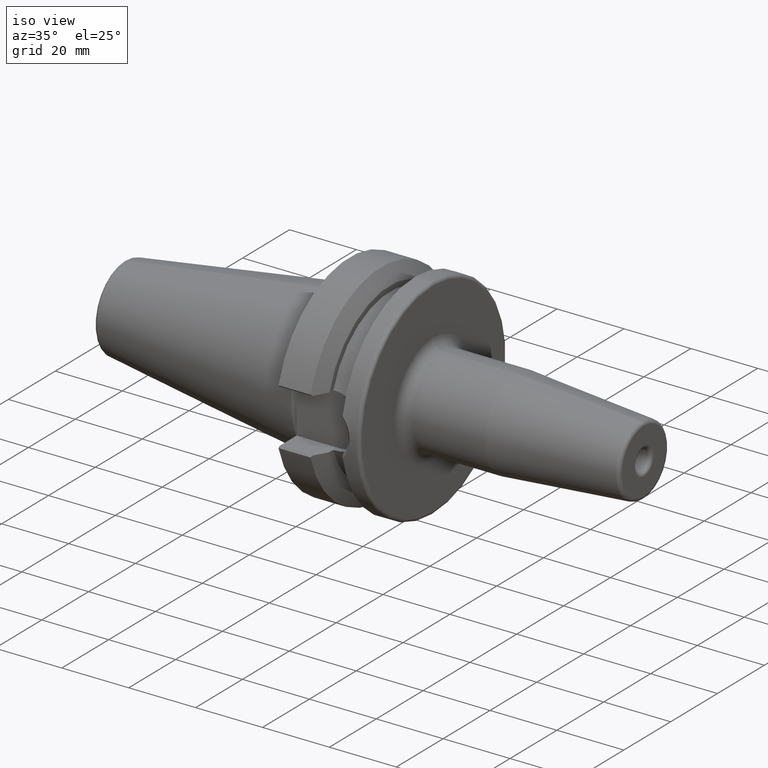
[diagram: clean part render]
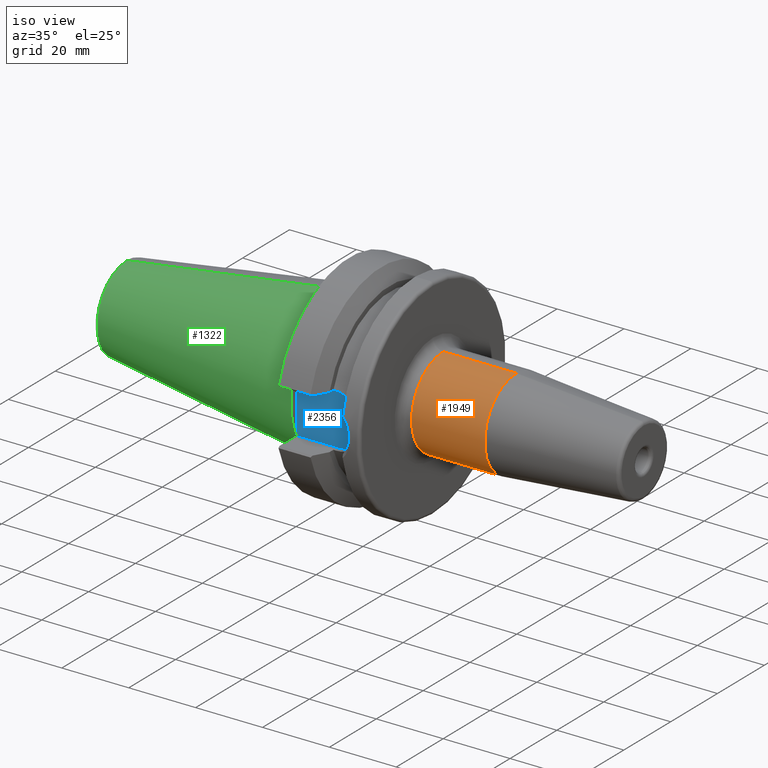
[diagram: same view with three faces highlighted in distinct colors, each labeled with its STEP entity id]
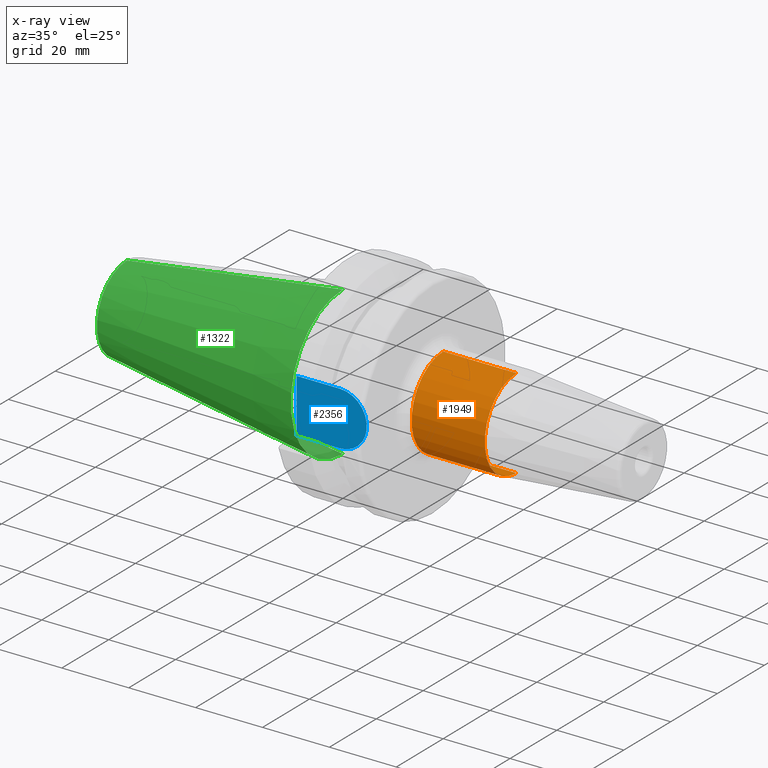
[diagram: x-ray of the same camera — body ghosted, the three highlighted faces saturated]
A machine part, iso view with three faces highlighted in distinct colors.
The next image is the same camera in x-ray (body ghosted, the three faces saturated) — at least one of them is partly hidden behind the body in this view.
Their STEP definitions:

[orange] entity #1949 — the highlighted cylindrical surface (partial cylindrical patch) has radius 13.5 mm, axis along (1, 0, 0).
#450=DIRECTION('',(-1.E0,0.E0,0.E0));
#451=VECTOR('',#450,2.188138579148E1);
#452=CARTESIAN_POINT('',(5.188138579148E1,0.E0,-1.35E1));
#453=LINE('',#452,#451);
#454=DIRECTION('',(-1.E0,0.E0,0.E0));
#455=VECTOR('',#454,2.188138579148E1);
#456=CARTESIAN_POINT('',(5.188138579148E1,0.E0,1.35E1));
#457=LINE('',#456,#455);
#458=CARTESIAN_POINT('',(5.188138579148E1,0.E0,0.E0));
#459=DIRECTION('',(-1.E0,0.E0,0.E0));
#460=DIRECTION('',(0.E0,0.E0,-1.E0));
#461=AXIS2_PLACEMENT_3D('',#458,#459,#460);
#998=CARTESIAN_POINT('',(3.E1,0.E0,0.E0));
#999=DIRECTION('',(-1.E0,0.E0,0.E0));
#1000=DIRECTION('',(0.E0,0.E0,-1.E0));
#1001=AXIS2_PLACEMENT_3D('',#998,#999,#1000);
#1211=CARTESIAN_POINT('',(5.188138579148E1,0.E0,-1.35E1));
#1212=VERTEX_POINT('',#1211);
#1213=CARTESIAN_POINT('',(3.E1,0.E0,-1.35E1));
#1214=VERTEX_POINT('',#1213);
#1233=CARTESIAN_POINT('',(5.188138579148E1,0.E0,1.35E1));
#1234=VERTEX_POINT('',#1233);
#1235=CARTESIAN_POINT('',(3.E1,0.E0,1.35E1));
#1236=VERTEX_POINT('',#1235);
#1935=CARTESIAN_POINT('',(2.385E1,0.E0,0.E0));
#1936=DIRECTION('',(1.E0,0.E0,0.E0));
#1937=DIRECTION('',(0.E0,0.E0,1.E0));
#1938=AXIS2_PLACEMENT_3D('',#1935,#1936,#1937);
#1939=CYLINDRICAL_SURFACE('',#1938,1.35E1);
#1941=ORIENTED_EDGE('',*,*,#1940,.T.);
#1943=ORIENTED_EDGE('',*,*,#1942,.T.);
#1945=ORIENTED_EDGE('',*,*,#1944,.F.);
#1946=ORIENTED_EDGE('',*,*,#1928,.F.);
#1947=EDGE_LOOP('',(#1941,#1943,#1945,#1946));
#1948=FACE_OUTER_BOUND('',#1947,.F.);
#1949=ADVANCED_FACE('',(#1948),#1939,.T.);
#462=CIRCLE('',#461,1.35E1);
#1002=CIRCLE('',#1001,1.35E1);
#1928=EDGE_CURVE('',#1212,#1234,#462,.T.);
#1940=EDGE_CURVE('',#1212,#1214,#453,.T.);
#1942=EDGE_CURVE('',#1214,#1236,#1002,.T.);
#1944=EDGE_CURVE('',#1234,#1236,#457,.T.);

[blue] entity #2356 — the highlighted planar face has unit normal (0, 1, 0).
#838=CARTESIAN_POINT('',(1.495E1,-2.26E1,0.E0));
#839=DIRECTION('',(0.E0,1.E0,0.E0));
#840=DIRECTION('',(0.E0,0.E0,1.E0));
#841=AXIS2_PLACEMENT_3D('',#838,#839,#840);
#843=DIRECTION('',(-1.E0,0.E0,0.E0));
#844=VECTOR('',#843,1.295E1);
#845=CARTESIAN_POINT('',(1.495E1,-2.26E1,-8.05E0));
#846=LINE('',#845,#844);
#847=DIRECTION('',(1.E0,0.E0,0.E0));
#848=VECTOR('',#847,1.295E1);
#849=CARTESIAN_POINT('',(2.E0,-2.26E1,8.05E0));
#850=LINE('',#849,#848);
#861=DIRECTION('',(0.E0,0.E0,-1.E0));
#862=VECTOR('',#861,1.61E1);
#863=CARTESIAN_POINT('',(2.E0,-2.26E1,8.05E0));
#864=LINE('',#863,#862);
#1158=CARTESIAN_POINT('',(2.E0,-2.26E1,8.05E0));
#1159=CARTESIAN_POINT('',(2.E0,-2.26E1,-8.05E0));
#1160=VERTEX_POINT('',#1158);
#1161=VERTEX_POINT('',#1159);
#1185=CARTESIAN_POINT('',(1.495E1,-2.26E1,-8.05E0));
#1187=VERTEX_POINT('',#1185);
#1189=CARTESIAN_POINT('',(1.495E1,-2.26E1,8.05E0));
#1190=VERTEX_POINT('',#1189);
#2344=CARTESIAN_POINT('',(0.E0,-2.26E1,0.E0));
#2345=DIRECTION('',(0.E0,1.E0,0.E0));
#2346=DIRECTION('',(1.E0,0.E0,0.E0));
#2347=AXIS2_PLACEMENT_3D('',#2344,#2345,#2346);
#2348=PLANE('',#2347);
#2349=ORIENTED_EDGE('',*,*,#2091,.T.);
#2350=ORIENTED_EDGE('',*,*,#2125,.T.);
#2352=ORIENTED_EDGE('',*,*,#2351,.F.);
#2353=ORIENTED_EDGE('',*,*,#2331,.T.);
#2354=EDGE_LOOP('',(#2349,#2350,#2352,#2353));
#2355=FACE_OUTER_BOUND('',#2354,.F.);
#2356=ADVANCED_FACE('',(#2355),#2348,.F.);
#842=CIRCLE('',#841,8.05E0);
#2091=EDGE_CURVE('',#1190,#1187,#842,.T.);
#2125=EDGE_CURVE('',#1187,#1161,#846,.T.);
#2331=EDGE_CURVE('',#1160,#1190,#850,.T.);
#2351=EDGE_CURVE('',#1160,#1161,#864,.T.);

[green] entity #1322 — the highlighted conical surface has half-angle 8.297 deg.
#20=CARTESIAN_POINT('',(4.547473508865E-13,0.E0,0.E0));
#21=DIRECTION('',(1.E0,0.E0,0.E0));
#22=DIRECTION('',(0.E0,0.E0,1.E0));
#23=AXIS2_PLACEMENT_3D('',#20,#21,#22);
#25=DIRECTION('',(-9.895329824990E-1,-2.390662347400E-10,1.443068832268E-1));
#26=VECTOR('',#25,6.522703944722E1);
#27=CARTESIAN_POINT('',(5.606857200746E-10,1.565092715213E-8,
-2.222499999985E1));
#28=LINE('',#27,#26);
#29=CARTESIAN_POINT('',(-6.454430688323E1,0.E0,0.E0));
#30=DIRECTION('',(-1.E0,0.E0,0.E0));
#31=DIRECTION('',(0.E0,0.E0,-1.E0));
#32=AXIS2_PLACEMENT_3D('',#29,#30,#31);
#34=DIRECTION('',(-9.895329824990E-1,2.390660335631E-10,-1.443068832268E-1));
#35=VECTOR('',#34,6.522703944722E1);
#36=CARTESIAN_POINT('',(5.606857200746E-10,-1.565091853005E-8,
2.222499999985E1));
#37=LINE('',#36,#35);
#1086=CARTESIAN_POINT('',(-6.454430688323E1,0.E0,1.281228923511E1));
#1087=CARTESIAN_POINT('',(-6.454430688323E1,0.E0,-1.281228923511E1));
#1088=VERTEX_POINT('',#1086);
#1089=VERTEX_POINT('',#1087);
#1090=CARTESIAN_POINT('',(4.547473508865E-13,0.E0,2.2225E1));
#1091=CARTESIAN_POINT('',(4.547473508865E-13,0.E0,-2.2225E1));
#1092=VERTEX_POINT('',#1090);
#1093=VERTEX_POINT('',#1091);
#1310=CARTESIAN_POINT('',(-3.227215344161E1,0.E0,0.E0));
#1311=DIRECTION('',(1.E0,0.E0,0.E0));
#1312=DIRECTION('',(0.E0,0.E0,1.E0));
#1313=AXIS2_PLACEMENT_3D('',#1310,#1311,#1312);
#1314=CONICAL_SURFACE('',#1313,1.751864461755E1,8.2971444E0);
#1315=ORIENTED_EDGE('',*,*,#1301,.T.);
#1316=ORIENTED_EDGE('',*,*,#1276,.T.);
#1318=ORIENTED_EDGE('',*,*,#1317,.T.);
#1319=ORIENTED_EDGE('',*,*,#1272,.F.);
#1320=EDGE_LOOP('',(#1315,#1316,#1318,#1319));
#1321=FACE_OUTER_BOUND('',#1320,.F.);
#1322=ADVANCED_FACE('',(#1321),#1314,.T.);
#24=CIRCLE('',#23,2.2225E1);
#33=CIRCLE('',#32,1.281228923511E1);
#1272=EDGE_CURVE('',#1092,#1088,#37,.T.);
#1276=EDGE_CURVE('',#1093,#1089,#28,.T.);
#1301=EDGE_CURVE('',#1092,#1093,#24,.T.);
#1317=EDGE_CURVE('',#1089,#1088,#33,.T.);